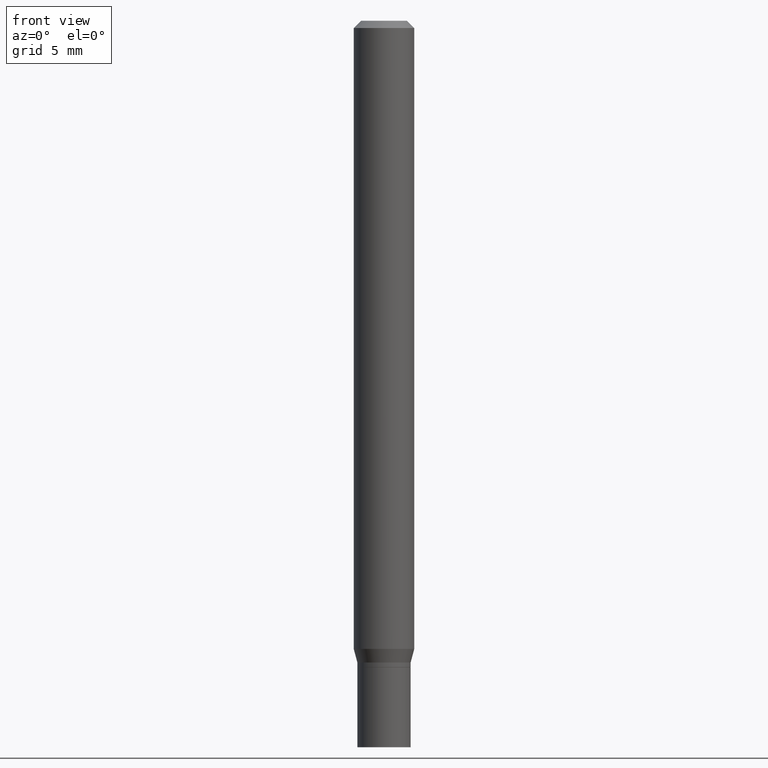
[diagram: clean part render]
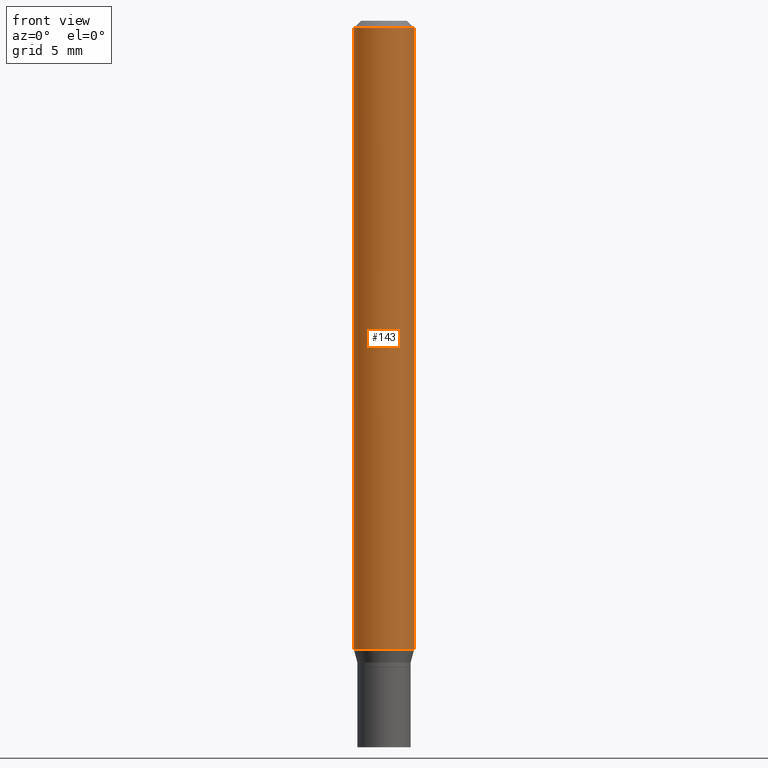
[diagram: same view with one face highlighted and labeled with its STEP entity id]
A machine part, front view. The second image highlights one B-rep face of the part: STEP entity #143.
In plain terms, the highlighted cylindrical surface (edge-blend (fillet) strip) has radius 1.5875 mm, axis along (-0, 0, 1).
Its self-contained STEP definition (entity closure, byte-faithful):
#22 = CARTESIAN_POINT ( 'NONE',  ( 0.06250000000000000000, -4.964920048195750682E-15, -1.297009618943233411 ) ) ;
#31 = EDGE_CURVE ( 'NONE', #246, #356, #309, .T. ) ;
#68 = DIRECTION ( 'NONE',  ( -2.445468806185136877E-29, 3.491481338843145188E-15, 1.000000000000000000 ) ) ;
#72 = EDGE_CURVE ( 'NONE', #413, #246, #114, .T. ) ;
#74 = DIRECTION ( 'NONE',  ( -2.445468806185136597E-29, 3.491481338843145583E-15, 1.000000000000000000 ) ) ;
#90 = VECTOR ( 'NONE', #433, 39.37007874015748143 ) ;
#94 = CYLINDRICAL_SURFACE ( 'NONE', #464, 0.06250000000000000000 ) ;
#98 = AXIS2_PLACEMENT_3D ( 'NONE', #435, #74, #192 ) ;
#114 = CIRCLE ( 'NONE', #98, 0.06250000000000000000 ) ;
#122 = CARTESIAN_POINT ( 'NONE',  ( 0.06250000000000000000, -4.364351673553916694E-16, 3.047610484872459871E-30 ) ) ;
#130 = VECTOR ( 'NONE', #68, 39.37007874015748143 ) ;
#143 = ADVANCED_FACE ( 'NONE', ( #419 ), #94, .T. ) ;
#144 = VERTEX_POINT ( 'NONE', #357 ) ;
#173 = CARTESIAN_POINT ( 'NONE',  ( 3.668203209277705088E-31, -5.237222008264718399E-17, -0.01499999999999999944 ) ) ;
#192 = DIRECTION ( 'NONE',  ( 1.000000000000000000, -6.982962677686262766E-15, 0.000000000000000000 ) ) ;
#201 = EDGE_CURVE ( 'NONE', #144, #356, #422, .T. ) ;
#224 = CARTESIAN_POINT ( 'NONE',  ( -0.06250000000000000000, -4.084395670990296396E-15, -1.297009618943233411 ) ) ;
#229 = AXIS2_PLACEMENT_3D ( 'NONE', #173, #285, #249 ) ;
#231 = ORIENTED_EDGE ( 'NONE', *, *, #361, .F. ) ;
#246 = VERTEX_POINT ( 'NONE', #22 ) ;
#248 = DIRECTION ( 'NONE',  ( 1.000000000000000000, -6.982962677686266711E-15, 4.876176775795935793E-29 ) ) ;
#249 = DIRECTION ( 'NONE',  ( 1.000000000000000000, -6.982962677686266711E-15, 0.000000000000000000 ) ) ;
#260 = CARTESIAN_POINT ( 'NONE',  ( 0.06250000000000000000, -4.888073874380388472E-16, -0.01499999999999999944 ) ) ;
#285 = DIRECTION ( 'NONE',  ( -2.445468806185136597E-29, 3.491481338843145583E-15, 1.000000000000000000 ) ) ;
#286 = CARTESIAN_POINT ( 'NONE',  ( 0.000000000000000000, 0.000000000000000000, 0.000000000000000000 ) ) ;
#309 = LINE ( 'NONE', #122, #90 ) ;
#345 = ORIENTED_EDGE ( 'NONE', *, *, #31, .T. ) ;
#356 = VERTEX_POINT ( 'NONE', #260 ) ;
#357 = CARTESIAN_POINT ( 'NONE',  ( -0.06250000000000000000, -1.846339340611440232E-15, -0.01499999999999999944 ) ) ;
#358 = ORIENTED_EDGE ( 'NONE', *, *, #72, .T. ) ;
#361 = EDGE_CURVE ( 'NONE', #413, #144, #405, .T. ) ;
#392 = DIRECTION ( 'NONE',  ( -2.445468806185136597E-29, 3.491481338843145583E-15, 1.000000000000000000 ) ) ;
#397 = CARTESIAN_POINT ( 'NONE',  ( -0.06250000000000000000, 4.440892098500626162E-16, -3.074334431409316114E-30 ) ) ;
#405 = LINE ( 'NONE', #397, #130 ) ;
#413 = VERTEX_POINT ( 'NONE', #224 ) ;
#419 = FACE_OUTER_BOUND ( 'NONE', #427, .T. ) ;
#422 = CIRCLE ( 'NONE', #229, 0.06250000000000000000 ) ;
#427 = EDGE_LOOP ( 'NONE', ( #231, #358, #345, #432 ) ) ;
#432 = ORIENTED_EDGE ( 'NONE', *, *, #201, .F. ) ;
#433 = DIRECTION ( 'NONE',  ( -2.445468806185136877E-29, 3.491481338843145188E-15, 1.000000000000000000 ) ) ;
#435 = CARTESIAN_POINT ( 'NONE',  ( 3.171796564447747781E-29, -4.528484880840358223E-15, -1.297009618943233411 ) ) ;
#464 = AXIS2_PLACEMENT_3D ( 'NONE', #286, #392, #248 ) ;